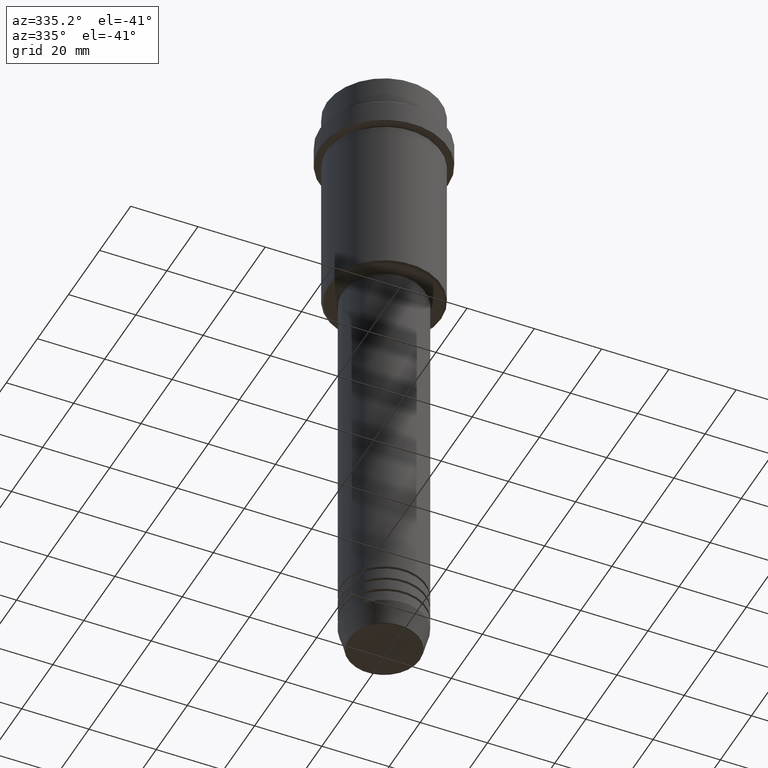
[diagram: clean part render]
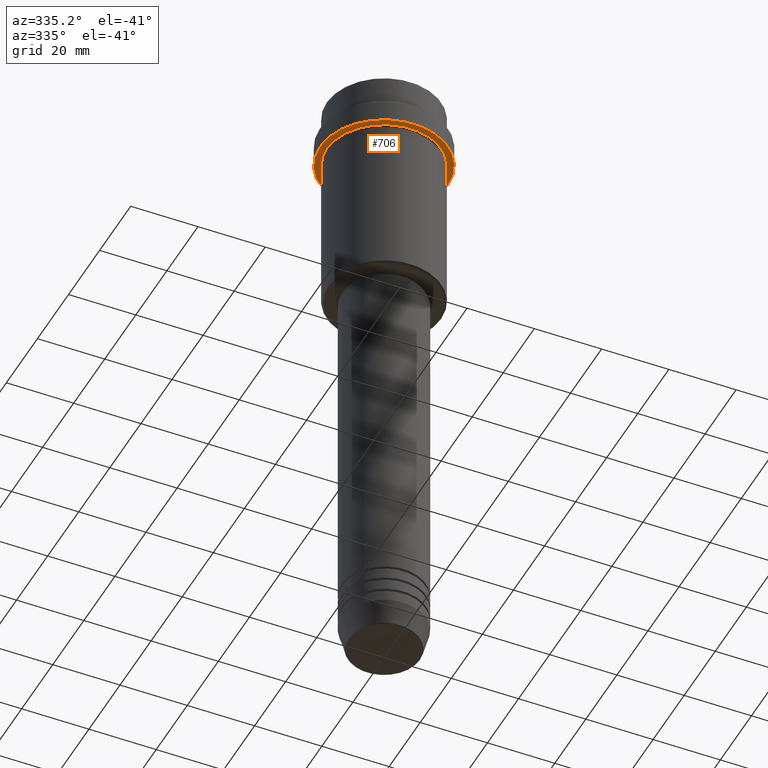
[diagram: same view with one face highlighted and labeled with its STEP entity id]
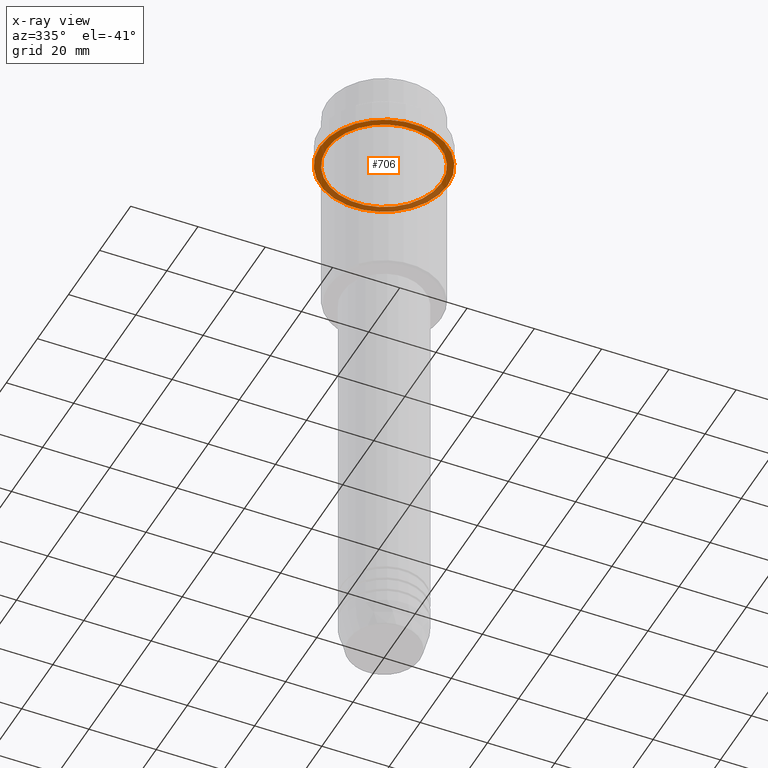
[diagram: x-ray of the same camera — body ghosted, the highlighted face saturated]
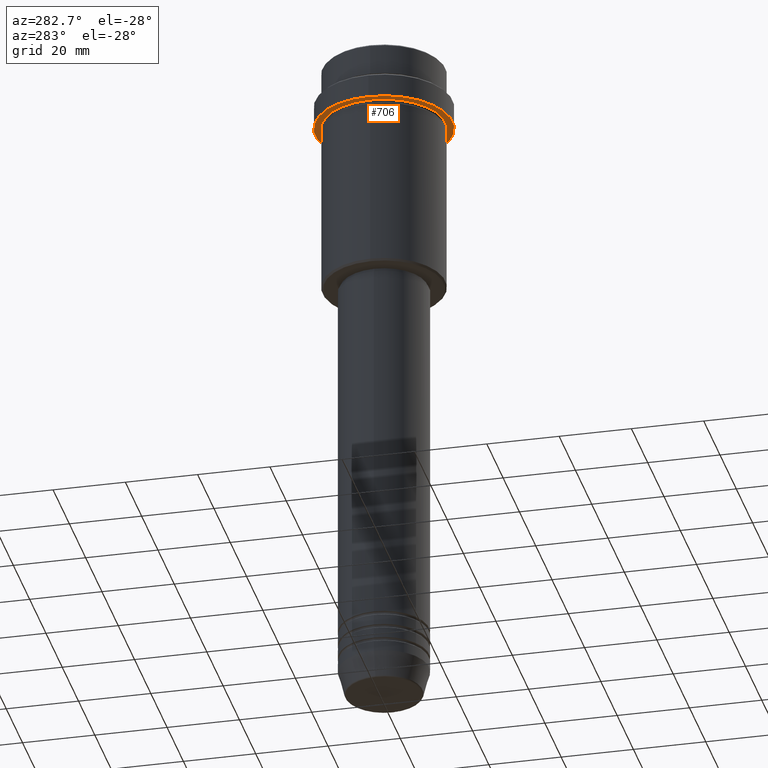
[diagram: same view with one face highlighted and labeled with its STEP entity id]
A machine part, auxiliary view. The second image highlights one B-rep face of the part: STEP entity #706.
The next image is the same camera in x-ray: the body ghosted, the highlighted face saturated — about 35% of this face is hidden behind the body in this view.
A second angle (auxiliary view) of the same face is appended — the face is thin or edge-on in the first view.
In plain terms, the highlighted planar face has unit normal (0, 0, -1).
Its self-contained STEP definition (entity closure, byte-faithful):
#5 = VERTEX_POINT ( 'NONE', #1335 ) ;
#9 = DIRECTION ( 'NONE',  ( -1.000000000000000000, 0.000000000000000000, 0.000000000000000000 ) ) ;
#77 = AXIS2_PLACEMENT_3D ( 'NONE', #196, #640, #9 ) ;
#119 = FACE_OUTER_BOUND ( 'NONE', #439, .T. ) ;
#196 = CARTESIAN_POINT ( 'NONE',  ( 0.000000000000000000, 0.000000000000000000, -17.00000000000000000 ) ) ;
#222 = EDGE_CURVE ( 'NONE', #5, #1107, #459, .T. ) ;
#236 = CIRCLE ( 'NONE', #602, 18.99999999999997868 ) ;
#246 = CARTESIAN_POINT ( 'NONE',  ( -16.99999999999997513, 0.000000000000000000, -17.00000000000000000 ) ) ;
#333 = DIRECTION ( 'NONE',  ( 0.000000000000000000, 0.000000000000000000, -1.000000000000000000 ) ) ;
#421 = CARTESIAN_POINT ( 'NONE',  ( 0.000000000000000000, 0.000000000000000000, -17.00000000000000000 ) ) ;
#427 = ORIENTED_EDGE ( 'NONE', *, *, #222, .F. ) ;
#428 = CARTESIAN_POINT ( 'NONE',  ( 0.000000000000000000, 18.99999999999997868, -17.00000000000000000 ) ) ;
#429 = CIRCLE ( 'NONE', #77, 16.99999999999997513 ) ;
#439 = EDGE_LOOP ( 'NONE', ( #589, #427 ) ) ;
#459 = CIRCLE ( 'NONE', #1348, 18.99999999999997868 ) ;
#529 = DIRECTION ( 'NONE',  ( -0.000000000000000000, -0.000000000000000000, 1.000000000000000000 ) ) ;
#534 = EDGE_CURVE ( 'NONE', #593, #952, #429, .T. ) ;
#537 = DIRECTION ( 'NONE',  ( -0.000000000000000000, -0.000000000000000000, 1.000000000000000000 ) ) ;
#542 = FACE_BOUND ( 'NONE', #1076, .T. ) ;
#589 = ORIENTED_EDGE ( 'NONE', *, *, #1156, .F. ) ;
#593 = VERTEX_POINT ( 'NONE', #246 ) ;
#602 = AXIS2_PLACEMENT_3D ( 'NONE', #421, #529, #765 ) ;
#640 = DIRECTION ( 'NONE',  ( -0.000000000000000000, -0.000000000000000000, 1.000000000000000000 ) ) ;
#641 = CARTESIAN_POINT ( 'NONE',  ( 0.000000000000000000, 0.000000000000000000, -17.00000000000000000 ) ) ;
#647 = AXIS2_PLACEMENT_3D ( 'NONE', #428, #333, #771 ) ;
#706 = ADVANCED_FACE ( 'NONE', ( #542, #119 ), #897, .T. ) ;
#727 = DIRECTION ( 'NONE',  ( -1.000000000000000000, 0.000000000000000000, 0.000000000000000000 ) ) ;
#765 = DIRECTION ( 'NONE',  ( 1.000000000000000000, 0.000000000000000000, 0.000000000000000000 ) ) ;
#771 = DIRECTION ( 'NONE',  ( -1.000000000000000000, 0.000000000000000000, -0.000000000000000000 ) ) ;
#807 = CIRCLE ( 'NONE', #833, 16.99999999999997513 ) ;
#833 = AXIS2_PLACEMENT_3D ( 'NONE', #843, #971, #727 ) ;
#843 = CARTESIAN_POINT ( 'NONE',  ( 0.000000000000000000, 0.000000000000000000, -17.00000000000000000 ) ) ;
#897 = PLANE ( 'NONE',  #647 ) ;
#952 = VERTEX_POINT ( 'NONE', #1000 ) ;
#971 = DIRECTION ( 'NONE',  ( -0.000000000000000000, -0.000000000000000000, 1.000000000000000000 ) ) ;
#979 = CARTESIAN_POINT ( 'NONE',  ( 18.99999999999997868, 0.000000000000000000, -17.00000000000000000 ) ) ;
#1000 = CARTESIAN_POINT ( 'NONE',  ( 16.99999999999997513, 2.081899558550497519E-15, -17.00000000000000000 ) ) ;
#1004 = ORIENTED_EDGE ( 'NONE', *, *, #1352, .T. ) ;
#1070 = DIRECTION ( 'NONE',  ( 1.000000000000000000, 0.000000000000000000, 0.000000000000000000 ) ) ;
#1076 = EDGE_LOOP ( 'NONE', ( #1260, #1004 ) ) ;
#1107 = VERTEX_POINT ( 'NONE', #979 ) ;
#1156 = EDGE_CURVE ( 'NONE', #1107, #5, #236, .T. ) ;
#1260 = ORIENTED_EDGE ( 'NONE', *, *, #534, .T. ) ;
#1335 = CARTESIAN_POINT ( 'NONE',  ( -18.99999999999997868, 2.326828918379968604E-15, -17.00000000000000000 ) ) ;
#1348 = AXIS2_PLACEMENT_3D ( 'NONE', #641, #537, #1070 ) ;
#1352 = EDGE_CURVE ( 'NONE', #952, #593, #807, .T. ) ;